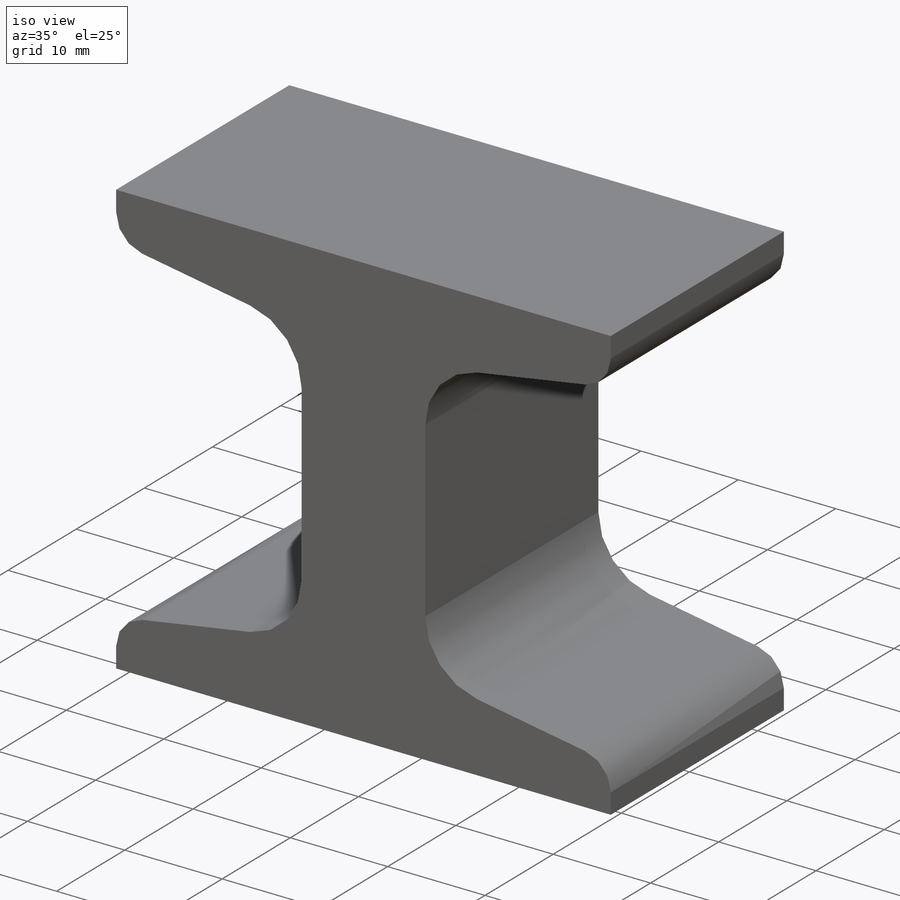
[diagram: iso view]
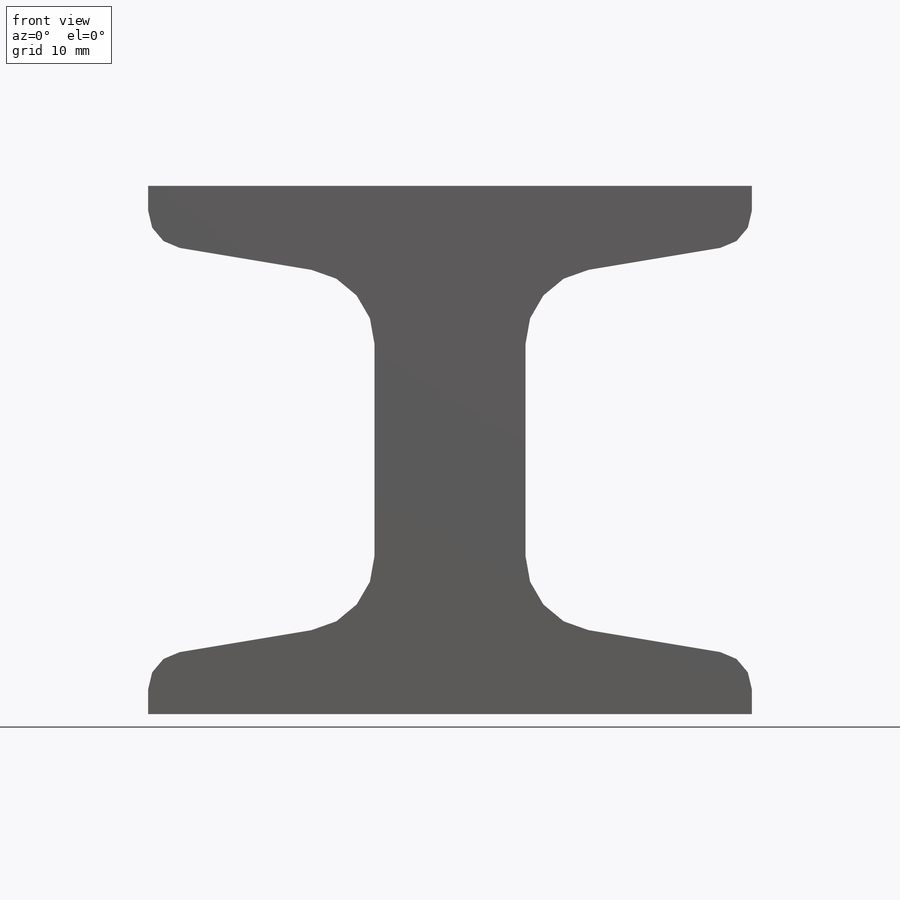
[diagram: front view]
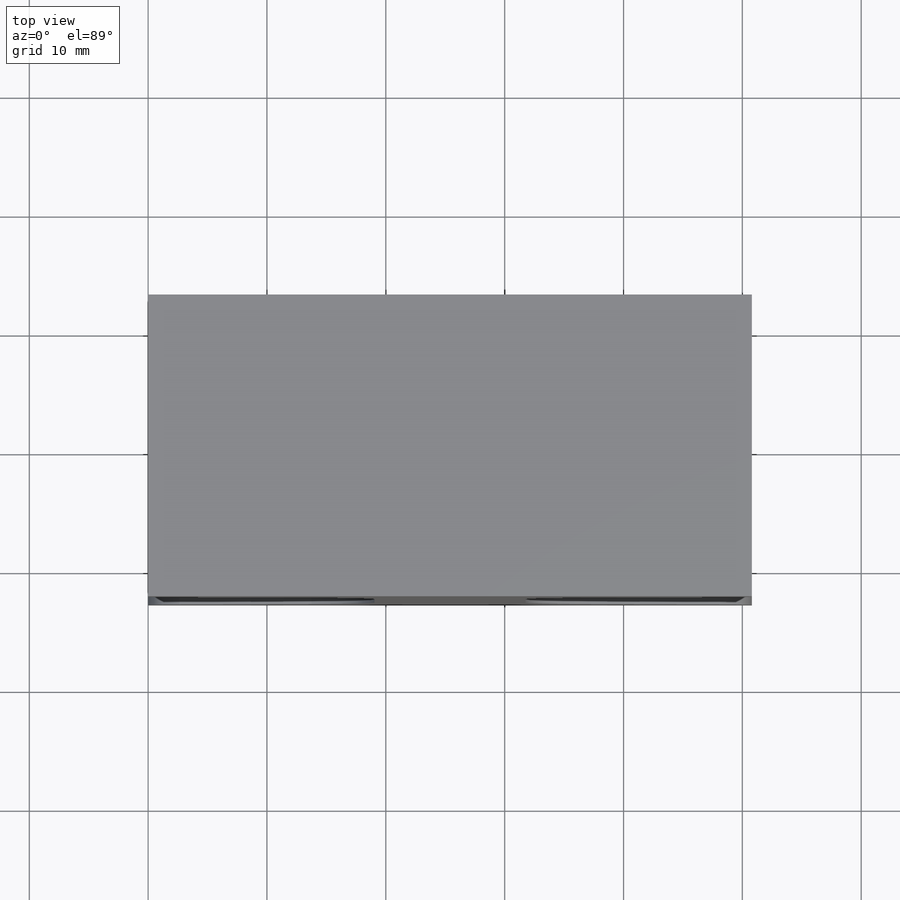
[diagram: top view]
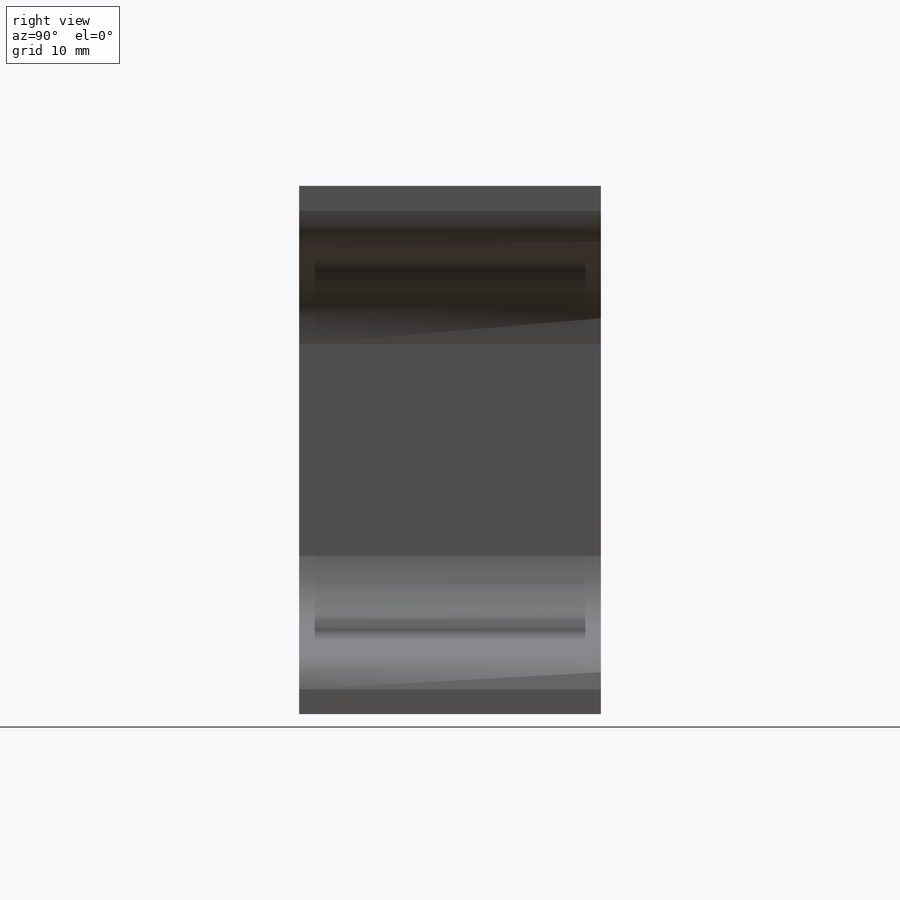
[diagram: right view]
SOLIDWORKS PART (.sldprt)
format: sldprt  version: not decoded by parser v0  size: 278,016 bytes
history: native  units: mm
features: fillet x4, plane x3, material x1, sketch x1, extrude x1 (+10 scaffold rows collapsed; 1 parser-record rows omitted)
feature tree (21):
  parser-record x1  (decoder bookkeeping rows leaked as tree rows — omitted from the tree; the rows remain in map.json)
  scaffold x10  (default folders/planes/origin — collapsed)
  material  "Plain Carbon Steel"
  plane  "Plane1"
  plane  "Plane2"
  plane  "Plane3"
  sketch  "Sketch1"  dims[c1.D5=6.35mm c1.D7=2.54mm c1.D8=2.54mm c1.D10=2.54mm c1.RI=7.366mm c1.RA=2.54mm c1.BF=67.6402mm c1.D2=6.35mm c1.D3=44.45mm c1.D4=12.7mm c1.D6=90.0deg c2.D2=97.0deg c2.D7=90.0deg c2.D8=6.35mm c2.D9=90.0deg c2.D10=19.05mm c3.D2=90.0deg c3.D6=99.0deg c3.D7=19.05mm c3.D9=99.0deg c3.D12=5.08mm c3.D8=19.05mm c4.D6=90.0deg c4.DEPTH=101.6mm c4.TW=4.9022mm c5.D6=90.0deg c5.D7=90.0deg c5.D8=16.51mm c5.D1=~69.007325mm c6.D6=~19.183835mm c7.D6=9.463deg c7.D7=~13.491778mm c8.D7=9.463deg c8.TF=7.4422mm]
  extrude  "BaseSbeam"  Depth=914.4mm Length=914.4mm
  fillet  "ToeFillet"  Radius=2.794mm RA=2.794mm
  fillet  "ConfigurationName"  Radius=0 CopiedFlag=0
  fillet  "PartNumberID"  [1 undecoded]
  fillet  "ConfigurationName"  Radius=0 CopiedFlag=0
decode coverage: 5 of 6 modeling features carry decoded parameters
note: ~ marks probable driven/reference dimensions
note: 1 parameter value undecoded
note: suppression state not decoded; provenance and decode notes live in map.json
